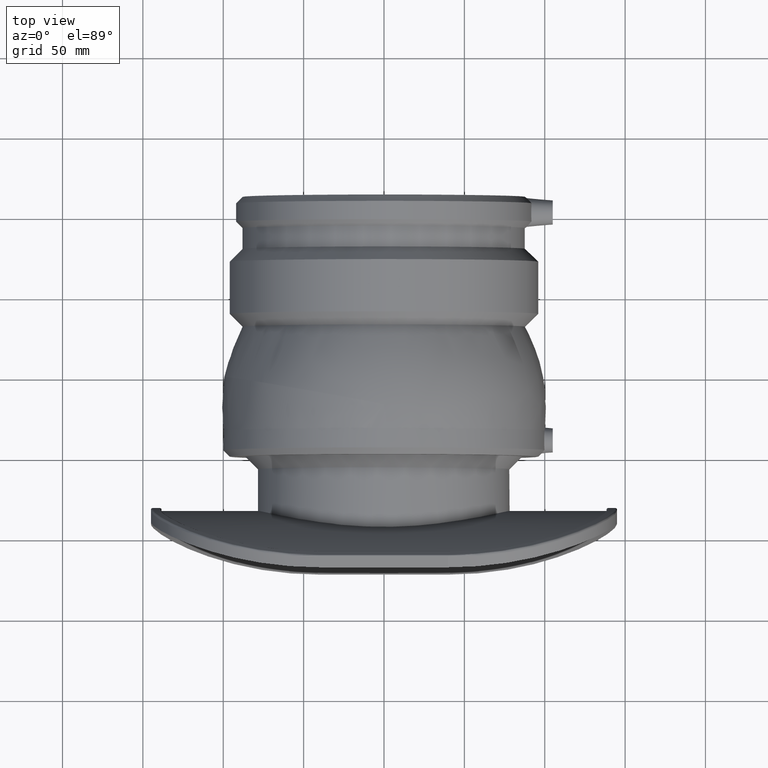
[diagram: clean part render]
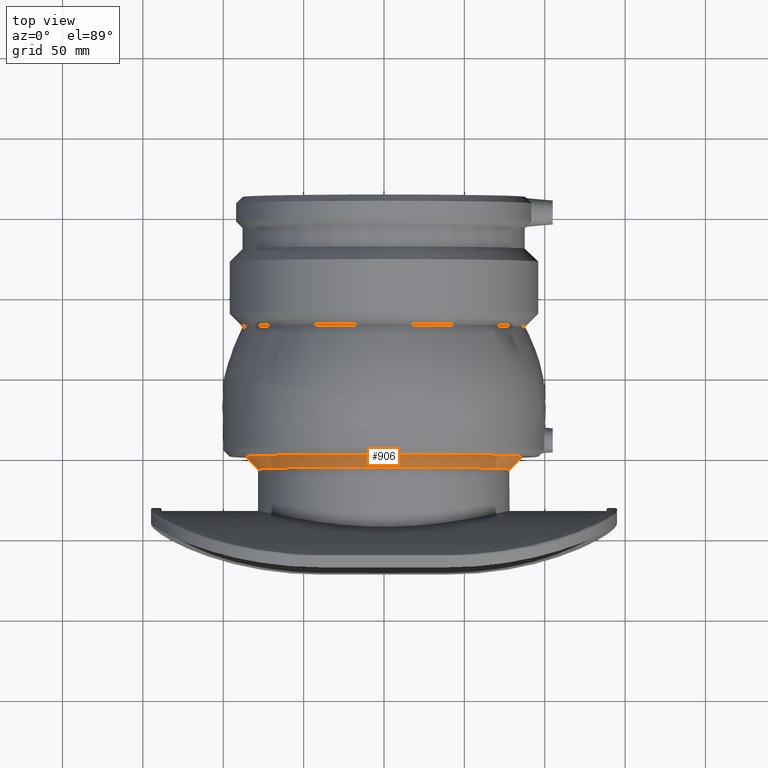
[diagram: same view with one face highlighted and labeled with its STEP entity id]
A machine part, top view. The second image highlights one B-rep face of the part: STEP entity #906.
In plain terms, the highlighted conical surface has half-angle 45 deg.
Its self-contained STEP definition (entity closure, byte-faithful):
#127=CONICAL_SURFACE('',#996,82.3277173056956,45.);
#151=FACE_BOUND('',#300,.T.);
#213=FACE_OUTER_BOUND('',#299,.T.);
#299=EDGE_LOOP('',(#672));
#300=EDGE_LOOP('',(#673));
#382=CIRCLE('',#995,78.4);
#383=CIRCLE('',#997,86.2554346113913);
#447=VERTEX_POINT('',#1639);
#448=VERTEX_POINT('',#1642);
#534=EDGE_CURVE('',#447,#447,#382,.T.);
#535=EDGE_CURVE('',#448,#448,#383,.T.);
#672=ORIENTED_EDGE('',*,*,#534,.T.);
#673=ORIENTED_EDGE('',*,*,#535,.F.);
#906=ADVANCED_FACE('',(#213,#151),#127,.T.);
#995=AXIS2_PLACEMENT_3D('',#1640,#1151,#1152);
#996=AXIS2_PLACEMENT_3D('',#1641,#1153,#1154);
#997=AXIS2_PLACEMENT_3D('',#1643,#1155,#1156);
#1151=DIRECTION('center_axis',(0.,1.,0.));
#1152=DIRECTION('ref_axis',(1.,0.,0.));
#1153=DIRECTION('center_axis',(0.,1.,0.));
#1154=DIRECTION('ref_axis',(-1.,0.,0.));
#1155=DIRECTION('center_axis',(0.,1.,0.));
#1156=DIRECTION('ref_axis',(1.,0.,0.));
#1639=CARTESIAN_POINT('',(-78.4,-7.85543461139129,0.));
#1640=CARTESIAN_POINT('Origin',(0.,-7.85543461139128,0.));
#1641=CARTESIAN_POINT('Origin',(0.,-3.92771730569565,0.));
#1642=CARTESIAN_POINT('',(-86.2554346113913,0.,0.));
#1643=CARTESIAN_POINT('Origin',(0.,0.,0.));